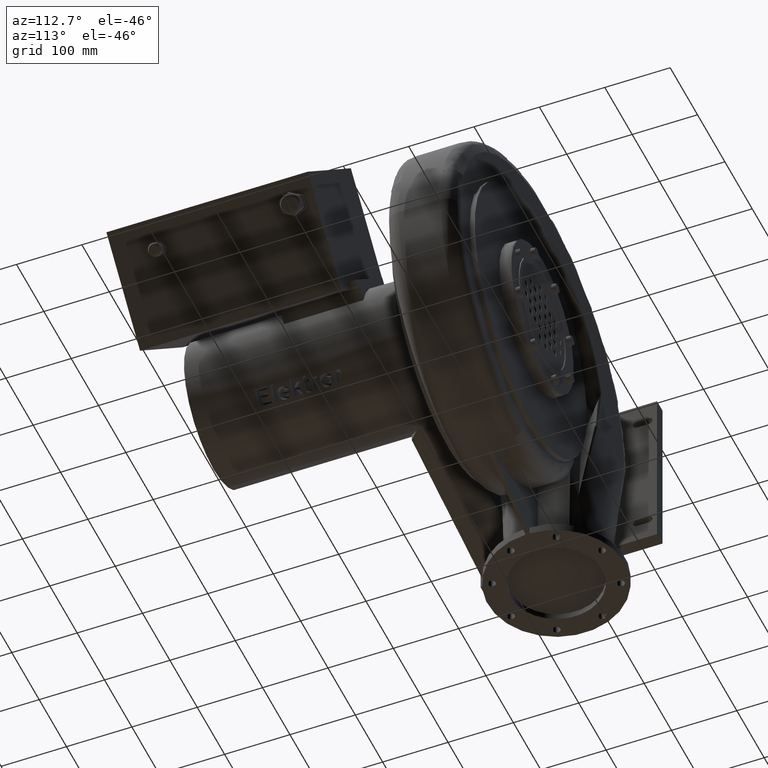
[diagram: clean part render]
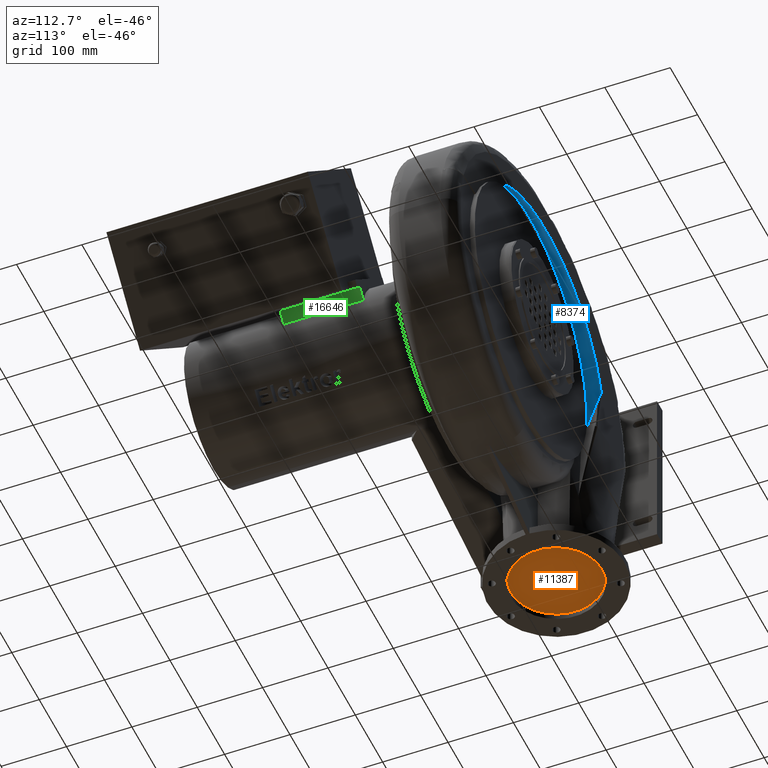
[diagram: same view with three faces highlighted in distinct colors, each labeled with its STEP entity id]
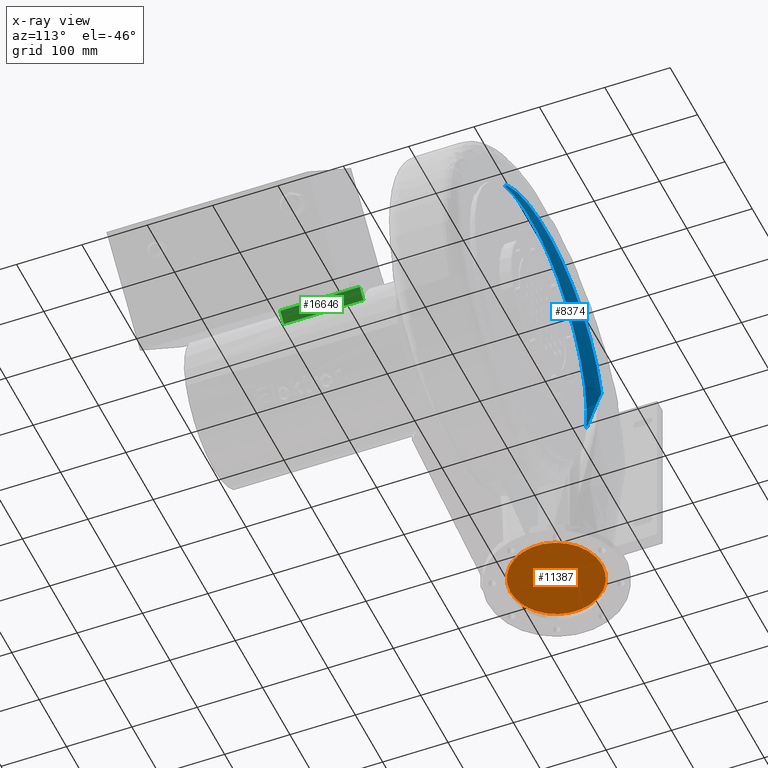
[diagram: x-ray of the same camera — body ghosted, the three highlighted faces saturated]
A machine part, auxiliary view with three faces highlighted in distinct colors.
The next image is the same camera in x-ray (body ghosted, the three faces saturated) — at least one of them is partly hidden behind the body in this view.
Their STEP definitions:

[orange] entity #11387 — the highlighted planar face has unit normal (0, 0, 1).
#11371=CARTESIAN_POINT('',(114.99999999999861,155.5,-404.99999999999972));
#11372=DIRECTION('',(0.0,0.0,1.0));
#11373=DIRECTION('',(0.0,-1.0,0.0));
#11374=AXIS2_PLACEMENT_3D('',#11371,#11372,#11373);
#11375=PLANE('',#11374);
#11376=CARTESIAN_POINT('',(114.99999999999858,225.49999999999997,-404.99999999999972));
#11377=VERTEX_POINT('',#11376);
#11378=CARTESIAN_POINT('',(114.99999999999861,155.5,-404.99999999999972));
#11379=DIRECTION('',(0.0,0.0,-1.0));
#11380=DIRECTION('',(0.0,-1.0,0.0));
#11381=AXIS2_PLACEMENT_3D('',#11378,#11379,#11380);
#11382=CIRCLE('',#11381,70.0);
#11383=EDGE_CURVE('',#11377,#11377,#11382,.T.);
#11384=ORIENTED_EDGE('',*,*,#11383,.T.);
#11385=EDGE_LOOP('',(#11384));
#11386=FACE_OUTER_BOUND('',#11385,.T.);
#11387=ADVANCED_FACE('',(#11386),#11375,.F.);

[blue] entity #8374 — the highlighted face is a freeform B-spline surface patch.
#7730=CARTESIAN_POINT('',(136.35572362990575,233.43171244686854,-81.169535977550538));
#7731=VERTEX_POINT('',#7730);
#7741=CARTESIAN_POINT('',(143.37295469061081,229.7619159482723,-104.52636561736153));
#7742=VERTEX_POINT('',#7741);
#7743=CARTESIAN_POINT('',(143.37295469061084,229.7619159482723,-104.52636561736179));
#7744=CARTESIAN_POINT('',(142.65917011435141,230.70589452760652,-99.616818391057009));
#7745=CARTESIAN_POINT('',(141.61246617692822,231.67227690606182,-95.35289873692804));
#7746=CARTESIAN_POINT('',(139.07606808108108,232.96985900660505,-87.718107132088647));
#7747=CARTESIAN_POINT('',(137.773271149462,233.35467397481241,-84.529144501337171));
#7748=CARTESIAN_POINT('',(136.36771604502786,233.43107810046334,-81.19795354649284));
#7749=CARTESIAN_POINT('',(136.36172013529207,233.43139818333779,-81.183744707062743));
#7750=CARTESIAN_POINT('',(136.35572362990581,233.43171244686854,-81.169535977550552));
#7751=B_SPLINE_CURVE_WITH_KNOTS('',3,(#7743,#7744,#7745,#7746,#7747,#7748,#7749,#7750),.UNSPECIFIED.,.F.,.U.,(4,2,2,4),(-2.416213060228566,-1.080288502731421,0.0,0.004627638160974),.UNSPECIFIED.);
#7752=EDGE_CURVE('',#7731,#7742,#7751,.F.);
#7964=CARTESIAN_POINT('',(138.34773020137709,233.32731580614052,-73.705572815750301));
#7965=VERTEX_POINT('',#7964);
#7966=CARTESIAN_POINT('',(138.34804849400331,233.32729912513082,-73.705663934953634));
#7967=CARTESIAN_POINT('',(138.05222732850123,233.3428024554797,-74.741845532916955));
#7968=CARTESIAN_POINT('',(137.3623126038778,233.37895935409193,-77.226276931936184));
#7969=CARTESIAN_POINT('',(136.71665764535442,233.41279669665113,-79.716702944763654));
#7970=CARTESIAN_POINT('',(136.35558175698921,233.43171988211304,-81.169500639112044));
#7971=B_SPLINE_CURVE_WITH_KNOTS('',3,(#7966,#7967,#7968,#7969,#7970),.UNSPECIFIED.,.F.,.U.,(4,1,4),(-10.884895323215808,-10.563456875311728,-10.115296822083254),.UNSPECIFIED.);
#7972=EDGE_CURVE('',#7965,#7731,#7971,.T.);
#8020=CARTESIAN_POINT('',(450.4667756048633,216.96984976460095,47.015406583840864));
#8021=VERTEX_POINT('',#8020);
#8028=CARTESIAN_POINT('',(138.34804849400331,233.32729912513082,-73.705663934953634));
#8029=CARTESIAN_POINT('',(138.64572402355685,233.31169861168001,-72.662987000854457));
#8030=CARTESIAN_POINT('',(139.96610963795038,233.24250013383227,-68.162075253043383));
#8031=CARTESIAN_POINT('',(145.032363500933,232.97698901958961,-52.717010364370338));
#8032=CARTESIAN_POINT('',(153.61877701224969,232.52699415545487,-33.465103440514937));
#8033=CARTESIAN_POINT('',(164.6964522332938,231.94643779750186,-14.877390536847559));
#8034=CARTESIAN_POINT('',(171.22007842898603,231.60454903571261,-5.456197231607476));
#8035=CARTESIAN_POINT('',(181.5838421026011,231.06140719656423,8.329002817662888));
#8036=CARTESIAN_POINT('',(195.51117721250807,230.33150649212357,23.791173388288307));
#8037=CARTESIAN_POINT('',(213.90599935389747,229.3674747133864,39.415367577913926));
#8038=CARTESIAN_POINT('',(226.42651453372278,228.71130231733233,48.304363915808544));
#8039=CARTESIAN_POINT('',(239.33050475970947,228.03503284569817,56.46914715035274));
#8040=CARTESIAN_POINT('',(255.45402253167933,227.19003508503872,65.083956732668383));
#8041=CARTESIAN_POINT('',(271.57266175539104,226.34529299825954,71.55388465881083));
#8042=CARTESIAN_POINT('',(286.22373109280687,225.57746299016358,76.29718158090833));
#8043=CARTESIAN_POINT('',(301.06456790941559,224.79968768990315,80.210874109366287));
#8044=CARTESIAN_POINT('',(325.60141194919339,223.51376618316397,84.215884654854122));
#8045=CARTESIAN_POINT('',(350.79458564389455,222.19344789673286,84.759168652656371));
#8046=CARTESIAN_POINT('',(373.71251777299381,220.99236996808716,82.226621487921875));
#8047=CARTESIAN_POINT('',(387.7523284504145,220.25657466892932,79.409836529005048));
#8048=CARTESIAN_POINT('',(398.90168438864629,219.67226168377039,76.35417931239391));
#8049=CARTESIAN_POINT('',(409.89937605242176,219.09589708643213,72.771834376534088));
#8050=CARTESIAN_POINT('',(423.28271979963091,218.39450576125938,67.267489562775012));
#8051=CARTESIAN_POINT('',(435.88383808736876,217.73410913531623,60.394357421801345));
#8052=CARTESIAN_POINT('',(444.08768502272125,217.30416373585629,54.560457629771967));
#8053=CARTESIAN_POINT('',(447.81983503905565,217.10857004154917,51.219875384254976));
#8054=CARTESIAN_POINT('',(449.48484863554256,217.02131037648127,49.286408201062542));
#8055=CARTESIAN_POINT('',(450.22716499571737,216.98240722451891,48.072630939712759));
#8056=CARTESIAN_POINT('',(450.46677560486307,216.96984976460095,47.376944810450119));
#8057=CARTESIAN_POINT('',(450.46677560486296,216.96984976460095,47.015406583840928));
#8058=B_SPLINE_CURVE_WITH_KNOTS('',3,(#8028,#8029,#8030,#8031,#8032,#8033,#8034,#8035,#8036,#8037,#8038,#8039,#8040,#8041,#8042,#8043,#8044,#8045,#8046,#8047,#8048,#8049,#8050,#8051,#8052,#8053,#8054,#8055,#8056,#8057),.UNSPECIFIED.,.F.,.U.,(4,1,1,1,1,1,1,1,1,1,1,1,1,1,1,1,1,1,1,1,1,1,1,1,1,1,1,4),(10.884895323215808,11.20834871789198,12.283168455525736,15.722591615953753,17.44230319616776,18.732086881328264,19.162014776381767,22.601437936809781,24.894386710428456,26.327479693940127,27.187335484047132,29.480284257665808,31.773233031284487,32.346470224689156,34.066181804903167,36.359130578521842,39.798553738949856,41.518265319163859,43.23797689937787,44.097832689484875,44.95768847959188,46.677400059805883,48.397111640019887,49.256967430126892,49.686895325180394,49.901859272707142,50.00934124647052,50.116823220233897),.UNSPECIFIED.);
#8059=EDGE_CURVE('',#7965,#8021,#8058,.T.);
#8137=CARTESIAN_POINT('',(449.31538456751781,217.00000000000031,47.015406583841319));
#8138=CARTESIAN_POINT('',(449.42509097764321,217.00000000000031,47.015406583841283));
#8139=CARTESIAN_POINT('',(449.64450379708978,216.99835874788198,47.015406583841198));
#8140=CARTESIAN_POINT('',(450.02839030184657,216.98974293423811,47.015406583841099));
#8141=CARTESIAN_POINT('',(450.30244151290833,216.97846214942078,47.015406583840978));
#8142=CARTESIAN_POINT('',(450.46677560486296,216.96984976460095,47.015406583840928));
#8143=CARTESIAN_POINT('',(449.16769929410896,217.00000000000031,47.091933036288069));
#8144=CARTESIAN_POINT('',(449.29147096841405,217.00073645908063,47.119052204604024));
#8145=CARTESIAN_POINT('',(449.53902533346684,217.00014726445758,47.173311803712757));
#8146=CARTESIAN_POINT('',(449.97216504978866,216.99189935746205,47.268319269732743));
#8147=CARTESIAN_POINT('',(450.28137253125783,216.9795663426946,47.336210232511782));
#8148=CARTESIAN_POINT('',(450.46677560486307,216.96984976460095,47.376944810450119));
#8149=CARTESIAN_POINT('',(448.69606006346822,217.00000000000031,47.33565154694972));
#8150=CARTESIAN_POINT('',(448.84192619097803,217.00428366125902,47.405728900716902));
#8151=CARTESIAN_POINT('',(449.13370765782867,217.00944583284129,47.545978851699211));
#8152=CARTESIAN_POINT('',(449.64426993348991,217.00655948163779,47.79165450672604));
#8153=CARTESIAN_POINT('',(450.00870469224458,216.99385596433061,47.967264787556438));
#8154=CARTESIAN_POINT('',(450.22716499571737,216.98240722451891,48.072630939712759));
#8155=CARTESIAN_POINT('',(447.62168367413449,217.0000000000004,47.884961276823901));
#8156=CARTESIAN_POINT('',(447.79910331447252,217.01334155387826,48.017995878022987));
#8157=CARTESIAN_POINT('',(448.15413309456881,217.03356642868144,48.284439039646124));
#8158=CARTESIAN_POINT('',(448.77557276129465,217.04633181623055,48.751650202151751));
#8159=CARTESIAN_POINT('',(449.21910829789118,217.03523695849842,49.08587395897311));
#8160=CARTESIAN_POINT('',(449.48484863554256,217.02131037648127,49.286408201062542));
#8161=CARTESIAN_POINT('',(445.53641608904036,217.00000000000034,48.932878330770613));
#8162=CARTESIAN_POINT('',(445.75358406952836,217.03202725893843,49.149322641420632));
#8163=CARTESIAN_POINT('',(446.18850270741439,217.08372117466737,49.583379962835281));
#8164=CARTESIAN_POINT('',(446.95041730655731,217.13080203885704,50.345906284054173));
#8165=CARTESIAN_POINT('',(447.49426059907756,217.12563119921845,50.892137013160557));
#8166=CARTESIAN_POINT('',(447.81983503905565,217.10857004154917,51.219875384254976));
#8167=CARTESIAN_POINT('',(441.26706643240959,217.00000000000028,51.000094162927894));
#8168=CARTESIAN_POINT('',(441.53443513390522,217.07182745980015,51.334942566163448));
#8169=CARTESIAN_POINT('',(442.07089777522668,217.19114594072209,52.008261470574986));
#8170=CARTESIAN_POINT('',(443.01273600568447,217.31421385047076,53.195648093399981));
#8171=CARTESIAN_POINT('',(443.68548612534028,217.32524259815034,54.048653830334949));
#8172=CARTESIAN_POINT('',(444.08768502272125,217.30416373585629,54.560457629771967));
#8173=CARTESIAN_POINT('',(432.45894111803318,217.00000000000031,54.943056906705436));
#8174=CARTESIAN_POINT('',(432.78096427281156,217.15611038341456,55.449051290041247));
#8175=CARTESIAN_POINT('',(433.42987209613,217.4197911098486,56.472290699398968));
#8176=CARTESIAN_POINT('',(434.57503951950673,217.7088037430461,58.291235159402355));
#8177=CARTESIAN_POINT('',(435.39487777787053,217.75972927925341,59.605685635026205));
#8178=CARTESIAN_POINT('',(435.88383808736876,217.73410913531623,60.394357421801345));
#8179=CARTESIAN_POINT('',(419.59439643776273,217.00000000000014,59.790129898989477));
#8180=CARTESIAN_POINT('',(419.93654127741053,217.28116188709845,60.469126155551592));
#8181=CARTESIAN_POINT('',(420.6308898186598,217.76119347450575,61.85531043878963));
#8182=CARTESIAN_POINT('',(421.8667584929168,218.30450886135961,64.352313754507037));
#8183=CARTESIAN_POINT('',(422.75494905121752,218.42217644363089,66.174290943437711));
#8184=CARTESIAN_POINT('',(423.28271979963091,218.39450576125938,67.267489562775012));
#8185=CARTESIAN_POINT('',(406.34790446318476,217.00000000000028,63.598717768017437));
#8186=CARTESIAN_POINT('',(406.67362201572689,217.41014295177871,64.411078682235726));
#8187=CARTESIAN_POINT('',(407.33898821334384,218.11584150882931,66.087682381847046));
#8188=CARTESIAN_POINT('',(408.53200127784191,218.92981826056175,69.153584192853344));
#8189=CARTESIAN_POINT('',(409.39126056184693,219.12249826714299,71.414971798628159));
#8190=CARTESIAN_POINT('',(409.89937605242176,219.09589708643213,72.771834376534088));
#8191=CARTESIAN_POINT('',(395.64310319935288,217.00000000000023,65.986600294845985));
#8192=CARTESIAN_POINT('',(395.94033960630497,217.51408100028755,66.885984616312427));
#8193=CARTESIAN_POINT('',(396.55005505621978,218.40315226906932,68.759003334993636));
#8194=CARTESIAN_POINT('',(397.64740771846419,219.44010188027033,72.226394476602763));
#8195=CARTESIAN_POINT('',(398.43715569272666,219.69658281701484,74.806222489843691));
#8196=CARTESIAN_POINT('',(398.90168438864629,219.67226168377039,76.35417931239391));
#8197=CARTESIAN_POINT('',(384.88822374444658,217.00000000000031,67.937538991605436));
#8198=CARTESIAN_POINT('',(385.14904315344211,217.61818213107816,68.912854002154887));
#8199=CARTESIAN_POINT('',(385.68578309894531,218.69191976341875,70.962136542856982));
#8200=CARTESIAN_POINT('',(386.65341694675919,219.955346724545,74.801331050815847));
#8201=CARTESIAN_POINT('',(387.34725450423292,220.27782739704267,77.681580729838657));
#8202=CARTESIAN_POINT('',(387.7523284504145,220.25657466892932,79.409836529005048));
#8203=CARTESIAN_POINT('',(371.50491882055059,217.00000000000023,69.545528353013509));
#8204=CARTESIAN_POINT('',(371.70847641438337,217.74691379904172,70.595429252109227));
#8205=CARTESIAN_POINT('',(372.12732865002135,219.05094271386326,72.827435264531047));
#8206=CARTESIAN_POINT('',(372.8778987177941,220.6005130401783,77.074298080770888));
#8207=CARTESIAN_POINT('',(373.40805141685593,221.00827446496123,80.294401908872771));
#8208=CARTESIAN_POINT('',(373.71251777299381,220.99236996808716,82.226621487921875));
#8209=CARTESIAN_POINT('',(349.92696498981991,217.00000000000031,70.439574688828003));
#8210=CARTESIAN_POINT('',(350.02139022251981,217.95233499926815,71.573110662705801));
#8211=CARTESIAN_POINT('',(350.2083275073087,219.62794617179043,74.031827487803255));
#8212=CARTESIAN_POINT('',(350.51403037271626,221.64671561074752,78.832849073222519));
#8213=CARTESIAN_POINT('',(350.7003748151746,222.1984803833879,82.536590598483443));
#8214=CARTESIAN_POINT('',(350.79458564389455,222.19344789673286,84.759168652656371));
#8215=CARTESIAN_POINT('',(326.5666698790335,216.99999999999989,68.610338236922274));
#8216=CARTESIAN_POINT('',(326.52632650306515,218.17025555626907,69.779395034976986));
#8217=CARTESIAN_POINT('',(326.41290303906436,220.24721447748689,72.379428491222114));
#8218=CARTESIAN_POINT('',(326.10767541398303,222.78592169238607,77.617729135323458));
#8219=CARTESIAN_POINT('',(325.80501520338379,223.502989628607,81.741246966229909));
#8220=CARTESIAN_POINT('',(325.60141194919339,223.51376618316397,84.215884654854122));
#8221=CARTESIAN_POINT('',(304.07338526299429,217.00000000000045,63.862142398659586));
#8222=CARTESIAN_POINT('',(303.90218796173656,218.37448231116156,65.016586829233475));
#8223=CARTESIAN_POINT('',(303.47726560247219,220.83532828550443,67.655128977495139));
#8224=CARTESIAN_POINT('',(302.48890263647149,223.8850923708676,73.148419948957738));
#8225=CARTESIAN_POINT('',(301.61526368193154,224.77086021939996,77.561910909251921));
#8226=CARTESIAN_POINT('',(301.06456790941559,224.79968768990315,80.210874109366287));
#8227=CARTESIAN_POINT('',(290.55354604727535,217.00000000000006,59.711344633428837));
#8228=CARTESIAN_POINT('',(290.30627803849006,218.49466889364442,60.838777398851185));
#8229=CARTESIAN_POINT('',(289.69047407791055,221.1847837899866,63.462003894865269));
#8230=CARTESIAN_POINT('',(288.25990278986922,224.54576280836702,69.037976039193367));
#8231=CARTESIAN_POINT('',(287.00560854746118,225.53643885815842,73.574312957549537));
#8232=CARTESIAN_POINT('',(286.22373109280687,225.57746299016358,76.29718158090833));
#8233=CARTESIAN_POINT('',(277.24616582187747,217.00000000000023,54.855624989504328));
#8234=CARTESIAN_POINT('',(276.92665229241663,218.61149475120968,55.946954215674332));
#8235=CARTESIAN_POINT('',(276.12305470389617,221.52638119079012,58.534165450136953));
#8236=CARTESIAN_POINT('',(274.24238205879942,225.19573397552139,64.150715373281997));
#8237=CARTESIAN_POINT('',(272.59389548044231,226.29182525823938,68.776871922015005));
#8238=CARTESIAN_POINT('',(271.57266175539104,226.34529299825954,71.55388465881083));
#8239=CARTESIAN_POINT('',(262.65772911893902,217.00000000000003,48.433721358034759));
#8240=CARTESIAN_POINT('',(262.26313299277939,218.73741661892663,49.472588314248121));
#8241=CARTESIAN_POINT('',(261.25465545551737,221.89732222119795,51.991318017381744));
#8242=CARTESIAN_POINT('',(258.86104278390144,225.90765328793287,57.594503867436451));
#8243=CARTESIAN_POINT('',(256.75374634647886,227.12196345581103,62.274426253361398));
#8244=CARTESIAN_POINT('',(255.45402253167933,227.19003508503872,65.083956732668383));
#8245=CARTESIAN_POINT('',(248.12641641071883,217.0000000000002,40.148475404803825));
#8246=CARTESIAN_POINT('',(247.66592829971071,218.8593858106488,41.117225875232315));
#8247=CARTESIAN_POINT('',(246.45981351887053,222.2608898437893,43.52420320516714));
#8248=CARTESIAN_POINT('',(243.53213508969822,226.61503067872877,49.018739039464464));
#8249=CARTESIAN_POINT('',(240.93024625514491,227.95103963016174,53.674106863227038));
#8250=CARTESIAN_POINT('',(239.33050475970947,228.03503284569817,56.46914715035274));
#8251=CARTESIAN_POINT('',(236.52082227629921,217.00000000000014,32.406550239671034));
#8252=CARTESIAN_POINT('',(236.01336834794776,218.95501631701376,33.310925501917261));
#8253=CARTESIAN_POINT('',(234.65469505804577,222.54821811867464,35.606229501168407));
#8254=CARTESIAN_POINT('',(231.29137454342435,227.17880385697549,40.959939315808811));
#8255=CARTESIAN_POINT('',(228.27675175546182,228.61440123953173,45.548910403305953));
#8256=CARTESIAN_POINT('',(226.42651453372278,228.71130231733233,48.304363915808544));
#8257=CARTESIAN_POINT('',(225.27564815336819,217.00000000000017,24.046648032500521));
#8258=CARTESIAN_POINT('',(224.72684104920108,219.0463201884327,24.882883315300109));
#8259=CARTESIAN_POINT('',(223.22454437006854,222.82418141280343,27.053810259550648));
#8260=CARTESIAN_POINT('',(219.43332737982195,227.72409991445926,32.230619869612525));
#8261=CARTESIAN_POINT('',(216.00635470524986,229.25736071074499,36.719677923394656));
#8262=CARTESIAN_POINT('',(213.90599935389747,229.3674747133864,39.415367577913926));
#8263=CARTESIAN_POINT('',(208.78460619107807,217.0,9.505343168464703));
#8264=CARTESIAN_POINT('',(208.18597071297705,219.17710450515068,10.22857387704758));
#8265=CARTESIAN_POINT('',(206.48465695888004,223.2234058001703,12.177864102716187));
#8266=CARTESIAN_POINT('',(202.05469248731774,228.5213117102177,16.991286657140449));
#8267=CARTESIAN_POINT('',(197.99529687698663,230.20147669432791,21.23964020840301));
#8268=CARTESIAN_POINT('',(195.51117721250807,230.33150649212357,23.791173388288307));
#8269=CARTESIAN_POINT('',(196.32176631594999,217.00000000000017,-4.72594904839857));
#8270=CARTESIAN_POINT('',(195.69860080377316,219.27231174508378,-4.102186425313383));
#8271=CARTESIAN_POINT('',(193.86243679592255,223.5184452568765,-2.368502221202152));
#8272=CARTESIAN_POINT('',(188.94146145803444,229.12052757336113,2.030666551868255));
#8273=CARTESIAN_POINT('',(184.37528296487562,230.91495420497614,5.965502894659267));
#8274=CARTESIAN_POINT('',(181.5838421026011,231.06140719656423,8.329002817662888));
#8275=CARTESIAN_POINT('',(187.05207320915144,217.00000000000006,-17.354497425398961));
#8276=CARTESIAN_POINT('',(186.41639815559557,219.34175905780623,-16.81118842504948));
#8277=CARTESIAN_POINT('',(184.48713609761867,223.7354504856703,-15.26356078682878));
#8278=CARTESIAN_POINT('',(179.19951075792824,229.56480830246954,-11.253971576014711));
#8279=CARTESIAN_POINT('',(174.24641190462725,231.44600231219334,-7.631982717814419));
#8280=CARTESIAN_POINT('',(171.22007842898603,231.60454903571261,-5.456197231607476));
#8281=CARTESIAN_POINT('',(181.21852935011319,217.00000000000006,-25.969607245799679));
#8282=CARTESIAN_POINT('',(180.57663090970945,219.38501609673497,-25.479054606561789));
#8283=CARTESIAN_POINT('',(178.59091978634385,223.87115116250823,-24.056865134523715));
#8284=CARTESIAN_POINT('',(173.0721313326377,229.84395076856163,-20.318848830687891));
#8285=CARTESIAN_POINT('',(167.87241000493268,231.77999108934642,-16.919541799496301));
#8286=CARTESIAN_POINT('',(164.6964522332938,231.94643779750186,-14.877390536847559));
#8287=CARTESIAN_POINT('',(171.31522002334941,217.00000000000014,-42.922477678927244));
#8288=CARTESIAN_POINT('',(170.66764485813809,219.45727818500089,-42.528432038096959));
#8289=CARTESIAN_POINT('',(168.59239779881207,224.0993845842778,-41.347258218943281));
#8290=CARTESIAN_POINT('',(162.68041781859716,230.31659492963354,-38.160208505723496));
#8291=CARTESIAN_POINT('',(157.05384890817814,232.34707763576336,-35.227257742316823));
#8292=CARTESIAN_POINT('',(153.61877701224969,232.52699415545487,-33.465103440514937));
#8293=CARTESIAN_POINT('',(163.64060084747965,216.99999999999989,-60.421970151828319));
#8294=CARTESIAN_POINT('',(162.99482001724357,219.51174222603009,-60.115386867009192));
#8295=CARTESIAN_POINT('',(160.85849488928932,224.27332263472724,-59.171896218290357));
#8296=CARTESIAN_POINT('',(154.64164074717939,230.68119397935857,-56.57551383971095));
#8297=CARTESIAN_POINT('',(148.67422023753173,232.78605179846895,-54.165288109255357));
#8298=CARTESIAN_POINT('',(145.032363500933,232.97698901958961,-52.717010364370338));
#8299=CARTESIAN_POINT('',(158.81107624656568,217.00000000000011,-75.368945966923434));
#8300=CARTESIAN_POINT('',(158.16851773107524,219.54554934323315,-75.129723048600113));
#8301=CARTESIAN_POINT('',(155.9965899209335,224.38192988777317,-74.381671292596408));
#8302=CARTESIAN_POINT('',(149.58814066711733,230.91008508009247,-72.299038823603865));
#8303=CARTESIAN_POINT('',(143.40333724907947,233.06233291459921,-70.355944882924533));
#8304=CARTESIAN_POINT('',(139.62948479011737,233.26014189455867,-69.188315303094782));
#8305=CARTESIAN_POINT('',(155.98063283833906,217.00000000000003,-85.429224593209881));
#8306=CARTESIAN_POINT('',(155.34042943466039,219.56526403769786,-85.233777448141268));
#8307=CARTESIAN_POINT('',(153.14824687796977,224.445413124287,-84.61565436428009));
#8308=CARTESIAN_POINT('',(146.62753232456822,231.04411756885349,-82.88072298060186));
#8309=CARTESIAN_POINT('',(140.31469559512448,233.22430998848046,-81.256354781774462));
#8310=CARTESIAN_POINT('',(136.46304360948872,233.42608804506594,-80.280261776295831));
#8311=CARTESIAN_POINT('',(152.12079157432103,217.00000000000034,-102.52164972963796));
#8312=CARTESIAN_POINT('',(151.48463384538434,219.59191958278296,-102.39729354670769));
#8313=CARTESIAN_POINT('',(149.26605774320436,224.53149759359627,-101.9963746979146));
#8314=CARTESIAN_POINT('',(142.59244416053269,231.22663202783269,-100.85593998038482));
#8315=CARTESIAN_POINT('',(136.10366492560496,233.44490833226214,-99.782116304169392));
#8316=CARTESIAN_POINT('',(132.14525140586807,233.65237394586319,-99.13682728502998));
#8317=CARTESIAN_POINT('',(150.13875864123898,216.99999999999966,-120.79368839302538));
#8318=CARTESIAN_POINT('',(149.50545345762626,219.60544096573986,-120.73972669375775));
#8319=CARTESIAN_POINT('',(147.27437139283694,224.57540721013586,-120.56481074248208));
#8320=CARTESIAN_POINT('',(140.52236590327917,231.32015516921751,-120.06561908422108));
#8321=CARTESIAN_POINT('',(133.94223002691288,233.55823417622008,-119.59501833025976));
#8322=CARTESIAN_POINT('',(129.92831160331428,233.76855883771927,-119.31213321870371));
#8323=CARTESIAN_POINT('',(149.89412114418059,217.00000000000014,-141.7674621391638));
#8324=CARTESIAN_POINT('',(149.2611243823298,219.60711152718187,-141.79314889611493));
#8325=CARTESIAN_POINT('',(147.0284576344923,224.58081668851997,-141.87646846498501));
#8326=CARTESIAN_POINT('',(140.26678597491835,231.33170128846183,-142.11428224709857));
#8327=CARTESIAN_POINT('',(133.67539434542994,233.57216434288117,-142.33845647666027));
#8328=CARTESIAN_POINT('',(129.65467765604041,233.78289938523238,-142.47324226455359));
#8329=CARTESIAN_POINT('',(150.57604555257288,217.00000000000003,-152.23514137862873));
#8330=CARTESIAN_POINT('',(149.94210353477325,219.60246654634989,-152.300807055831));
#8331=CARTESIAN_POINT('',(147.713754491402,224.56574722170089,-152.51314083097358));
#8332=CARTESIAN_POINT('',(140.97902991563859,231.29953112909362,-153.11862190924239));
#8333=CARTESIAN_POINT('',(134.41909559813007,233.53328108274215,-153.68942078109291));
#8334=CARTESIAN_POINT('',(130.41741754751661,233.74292588134952,-154.03233498811085));
#8335=CARTESIAN_POINT('',(151.53010050624056,217.00000000000003,-159.9999999999998));
#8336=CARTESIAN_POINT('',(150.89492275432585,219.59591893371589,-160.09601306281758));
#8337=CARTESIAN_POINT('',(148.67280028474946,224.5445257792727,-160.40494186843853));
#8338=CARTESIAN_POINT('',(141.97584834742219,231.25446827186934,-161.28245356417079));
#8339=CARTESIAN_POINT('',(135.45966066669837,233.47867311686801,-162.10819404895003));
#8340=CARTESIAN_POINT('',(131.48459474383802,233.68699749438883,-162.60442660714006));
#8341=B_SPLINE_SURFACE_WITH_KNOTS('',3,3,((#8137,#8143,#8149,#8155,#8161,#8167,#8173,#8179,#8185,#8191,#8197,#8203,#8209,#8215,#8221,#8227,#8233,#8239,#8245,#8251,#8257,#8263,#8269,#8275,#8281,#8287,#8293,#8299,#8305,#8311,#8317,#8323,#8329,#8335),(#8138,#8144,#8150,#8156,#8162,#8168,#8174,#8180,#8186,#8192,#8198,#8204,#8210,#8216,#8222,#8228,#8234,#8240,#8246,#8252,#8258,#8264,#8270,#8276,#8282,#8288,#8294,#8300,#8306,#8312,#8318,#8324,#8330,#8336),(#8139,#8145,#8151,#8157,#8163,#8169,#8175,#8181,#8187,#8193,#8199,#8205,#8211,#8217,#8223,#8229,#8235,#8241,#8247,#8253,#8259,#8265,#8271,#8277,#8283,#8289,#8295,#8301,#8307,#8313,#8319,#8325,#8331,#8337),(#8140,#8146,#8152,#8158,#8164,#8170,#8176,#8182,#8188,#8194,#8200,#8206,#8212,#8218,#8224,#8230,#8236,#8242,#8248,#8254,#8260,#8266,#8272,#8278,#8284,#8290,#8296,#8302,#8308,#8314,#8320,#8326,#8332,#8338),(#8141,#8147,#8153,#8159,#8165,#8171,#8177,#8183,#8189,#8195,#8201,#8207,#8213,#8219,#8225,#8231,#8237,#8243,#8249,#8255,#8261,#8267,#8273,#8279,#8285,#8291,#8297,#8303,#8309,#8315,#8321,#8327,#8333,#8339),(#8142,#8148,#8154,#8160,#8166,#8172,#8178,#8184,#8190,#8196,#8202,#8208,#8214,#8220,#8226,#8232,#8238,#8244,#8250,#8256,#8262,#8268,#8274,#8280,#8286,#8292,#8298,#8304,#8310,#8316,#8322,#8328,#8334,#8340)),.UNSPECIFIED.,.F.,.F.,.F.,(4,1,1,4),(4,1,1,1,1,1,1,1,1,1,1,1,1,1,1,1,1,1,1,1,1,1,1,1,1,1,1,1,1,1,1,4),(0.0,0.285714285714286,0.571428571428571,1.0),(-50.116823220233897,-50.00934124647052,-49.901859272707142,-49.686895325180394,-49.256967430126892,-48.397111640019887,-46.677400059805883,-44.95768847959188,-44.097832689484875,-43.23797689937787,-41.518265319163859,-39.798553738949856,-36.359130578521842,-34.066181804903167,-32.346470224689156,-31.773233031284487,-29.480284257665808,-27.187335484047132,-26.327479693940127,-24.894386710428456,-22.601437936809781,-19.162014776381767,-18.732086881328264,-17.44230319616776,-15.722591615953753,-12.283168455525736,-11.20834871789198,-10.563456875311728,-8.843745295097719,-5.404322134669704,-4.544466344562701,-1.96489897424169),.UNSPECIFIED.);
#8342=ORIENTED_EDGE('',*,*,#8059,.T.);
#8343=CARTESIAN_POINT('',(449.31538456751855,217.00000000000031,47.015406583840935));
#8344=VERTEX_POINT('',#8343);
#8345=CARTESIAN_POINT('',(449.31538456751855,195.00000000000031,47.015406583840864));
#8346=DIRECTION('',(6.232804E-018,1.189290E-016,1.0));
#8347=DIRECTION('',(0.052335956242945,0.998629534754574,-1.190922E-016));
#8348=AXIS2_PLACEMENT_3D('',#8345,#8346,#8347);
#8349=CIRCLE('',#8348,21.999999999999996);
#8350=EDGE_CURVE('',#8021,#8344,#8349,.T.);
#8351=ORIENTED_EDGE('',*,*,#8350,.T.);
#8352=CARTESIAN_POINT('',(151.53010050624059,217.00000000000003,-159.99999999999974));
#8353=VERTEX_POINT('',#8352);
#8354=CARTESIAN_POINT('',(354.99999999999858,217.0000000000002,-134.99999999999972));
#8355=DIRECTION('',(0.0,-1.0,0.0));
#8356=DIRECTION('',(0.0,0.0,-1.0));
#8357=AXIS2_PLACEMENT_3D('',#8354,#8355,#8356);
#8358=CIRCLE('',#8357,205.0);
#8359=EDGE_CURVE('',#8344,#8353,#8358,.T.);
#8360=ORIENTED_EDGE('',*,*,#8359,.T.);
#8361=CARTESIAN_POINT('',(143.37295469061081,229.76191594827236,-104.52636561736155));
#8362=CARTESIAN_POINT('',(144.29435060421036,228.5433718182183,-110.86390344375637));
#8363=CARTESIAN_POINT('',(145.19271545327308,227.10406523635243,-117.21925076822879));
#8364=CARTESIAN_POINT('',(148.38978163263113,221.65221442876725,-139.45703749090006));
#8365=CARTESIAN_POINT('',(150.21430363631521,218.01727872224549,-151.3544589076707));
#8366=CARTESIAN_POINT('',(151.53010050624059,216.99999999999994,-159.99999999999983));
#8367=B_SPLINE_CURVE_WITH_KNOTS('',3,(#8361,#8362,#8363,#8364,#8365,#8366),.UNSPECIFIED.,.F.,.U.,(4,2,4),(3.136380322942295,5.102981464248677,10.007407132430327),.UNSPECIFIED.);
#8368=EDGE_CURVE('',#7742,#8353,#8367,.T.);
#8369=ORIENTED_EDGE('',*,*,#8368,.F.);
#8370=ORIENTED_EDGE('',*,*,#7752,.F.);
#8371=ORIENTED_EDGE('',*,*,#7972,.F.);
#8372=EDGE_LOOP('',(#8342,#8351,#8360,#8369,#8370,#8371));
#8373=FACE_OUTER_BOUND('',#8372,.T.);
#8374=ADVANCED_FACE('',(#8373),#8341,.F.);

[green] entity #16646 — the highlighted planar face has unit normal (0.7071, 0, -0.7071).
#14926=CARTESIAN_POINT('',(461.1366896753949,5.300000000000154,-110.18059016106915));
#14927=VERTEX_POINT('',#14926);
#14935=CARTESIAN_POINT('',(461.13668967539797,-116.49999999999999,-110.18059016108246));
#14936=VERTEX_POINT('',#14935);
#14937=CARTESIAN_POINT('',(461.1366896753978,5.300000000000154,-110.18059016108232));
#14938=DIRECTION('',(0.0,-1.0,0.0));
#14939=VECTOR('',#14938,121.80000000000014);
#14940=LINE('',#14937,#14939);
#14941=EDGE_CURVE('',#14927,#14936,#14940,.T.);
#16616=CARTESIAN_POINT('',(395.65863991824654,10.499999999999972,-175.65863991823414));
#16617=DIRECTION('',(0.70710678118655,1.721518E-015,-0.707106781186546));
#16618=DIRECTION('',(0.0,1.0,0.0));
#16619=AXIS2_PLACEMENT_3D('',#16616,#16617,#16618);
#16620=PLANE('',#16619);
#16621=CARTESIAN_POINT('',(474.85459941113947,-116.49999999999999,-96.462680425341006));
#16622=VERTEX_POINT('',#16621);
#16623=CARTESIAN_POINT('',(474.85459941113908,5.300000000000189,-96.46268042534102));
#16624=VERTEX_POINT('',#16623);
#16625=CARTESIAN_POINT('',(474.85459941113959,-116.49999999999997,-96.462680425341077));
#16626=DIRECTION('',(0.0,1.0,0.0));
#16627=VECTOR('',#16626,121.80000000000018);
#16628=LINE('',#16625,#16627);
#16629=EDGE_CURVE('',#16622,#16624,#16628,.T.);
#16630=ORIENTED_EDGE('',*,*,#16629,.F.);
#16631=CARTESIAN_POINT('',(461.13668967539803,-116.49999999999999,-110.18059016108253));
#16632=DIRECTION('',(0.707106781186545,0.0,0.70710678118655));
#16633=VECTOR('',#16632,19.400053995695469);
#16634=LINE('',#16631,#16633);
#16635=EDGE_CURVE('',#14936,#16622,#16634,.T.);
#16636=ORIENTED_EDGE('',*,*,#16635,.F.);
#16637=ORIENTED_EDGE('',*,*,#14941,.F.);
#16638=CARTESIAN_POINT('',(461.13668967540303,5.300000000000162,-110.18059016107721));
#16639=DIRECTION('',(0.707106781186546,1.419250E-015,0.707106781186549));
#16640=VECTOR('',#16639,19.400053995687962);
#16641=LINE('',#16638,#16640);
#16642=EDGE_CURVE('',#14927,#16624,#16641,.T.);
#16643=ORIENTED_EDGE('',*,*,#16642,.T.);
#16644=EDGE_LOOP('',(#16630,#16636,#16637,#16643));
#16645=FACE_OUTER_BOUND('',#16644,.T.);
#16646=ADVANCED_FACE('',(#16645),#16620,.T.);